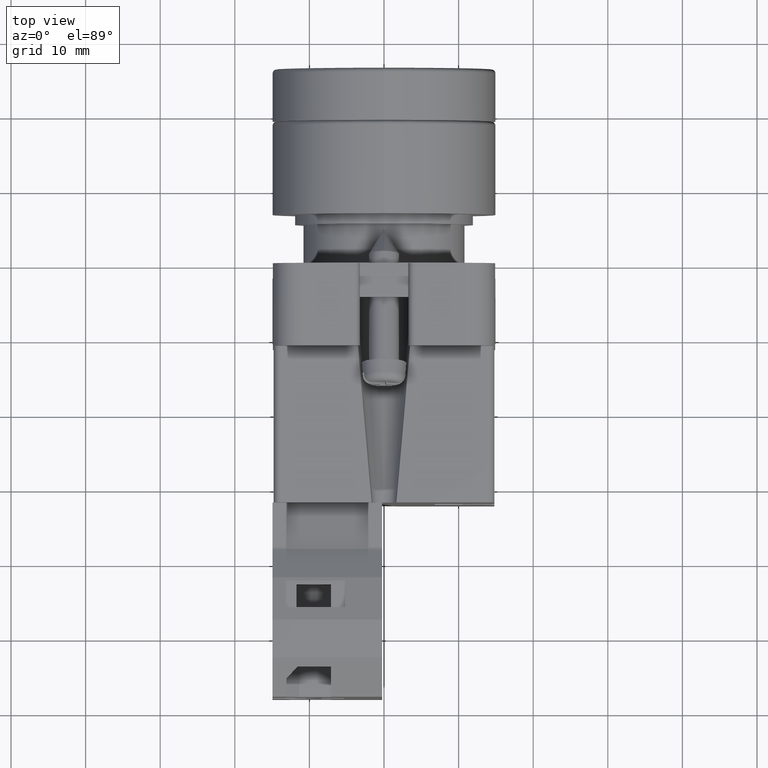
[diagram: clean part render]
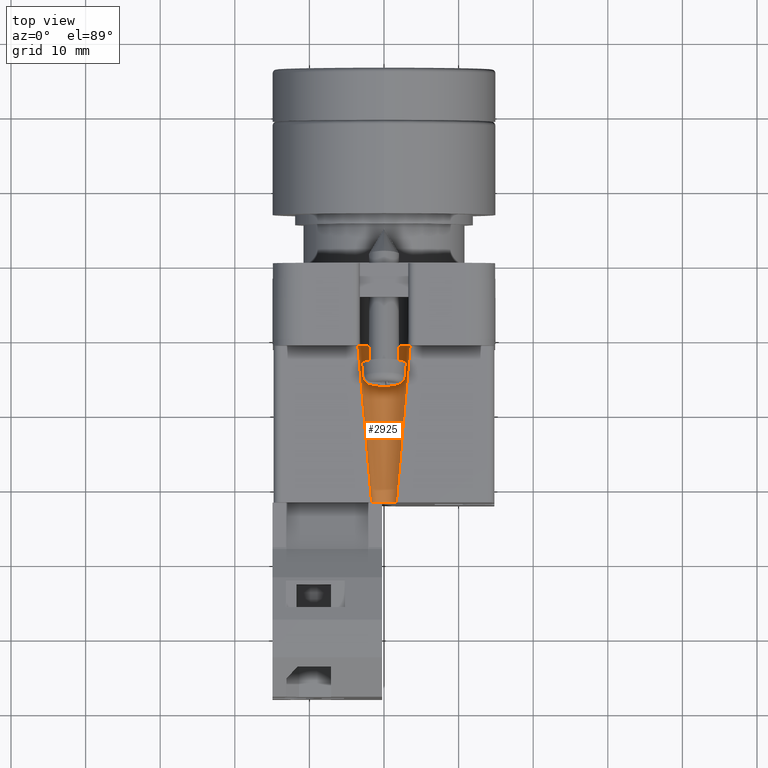
[diagram: same view with one face highlighted and labeled with its STEP entity id]
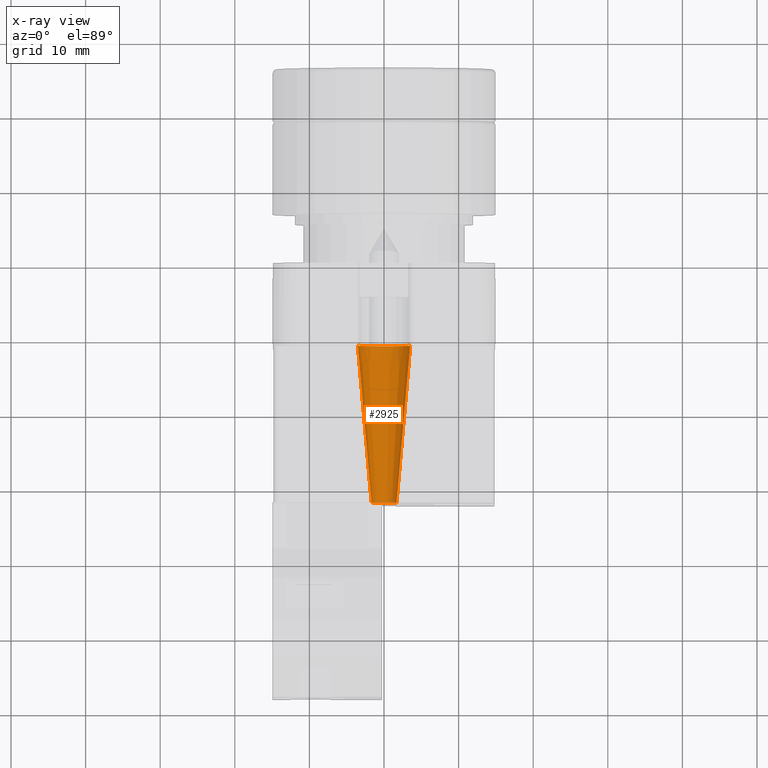
[diagram: x-ray of the same camera — body ghosted, the highlighted face saturated]
A machine part, top view. The second image highlights one B-rep face of the part: STEP entity #2925.
The next image is the same camera in x-ray: the body ghosted, the highlighted face saturated — about 0% of this face is hidden behind the body in this view.
In plain terms, the highlighted conical surface has half-angle 5 deg.
Its self-contained STEP definition (entity closure, byte-faithful):
#342 = AXIS2_PLACEMENT_3D ( 'NONE', #11403, #4688, #12540 ) ;
#434 = DIRECTION ( 'NONE',  ( 0.0000000000000000000, -0.9961946980917454300, 0.08715574274765822100 ) ) ;
#498 = CARTESIAN_POINT ( 'NONE',  ( 0.6220472440944883100, 0.4133858267716535900, 1.365923996832131600E-016 ) ) ;
#756 = CIRCLE ( 'NONE', #342, 0.1377952755905511900 ) ;
#790 = AXIS2_PLACEMENT_3D ( 'NONE', #8925, #2298, #10039 ) ;
#945 = ORIENTED_EDGE ( 'NONE', *, *, #8059, .F. ) ;
#1075 = ORIENTED_EDGE ( 'NONE', *, *, #10083, .T. ) ;
#1822 = EDGE_CURVE ( 'NONE', #8993, #5832, #3751, .T. ) ;
#2298 = DIRECTION ( 'NONE',  ( 0.0000000000000000000, 1.000000000000000000, -0.0000000000000000000 ) ) ;
#2885 = LINE ( 'NONE', #4967, #5447 ) ;
#2925 = ADVANCED_FACE ( 'NONE', ( #11819 ), #8451, .F. ) ;
#3198 = VERTEX_POINT ( 'NONE', #7583 ) ;
#3732 = EDGE_CURVE ( 'NONE', #5832, #8167, #2885, .T. ) ;
#3751 = CIRCLE ( 'NONE', #790, 0.06546212858092895200 ) ;
#4688 = DIRECTION ( 'NONE',  ( 0.0000000000000000000, 1.000000000000000000, -0.0000000000000000000 ) ) ;
#4909 = CARTESIAN_POINT ( 'NONE',  ( 0.6220472440944883100, -0.4133858267716535900, 0.06546212858092909100 ) ) ;
#4967 = CARTESIAN_POINT ( 'NONE',  ( 0.6220472440944883100, -1.161621380301759400, 1.365923996832131600E-016 ) ) ;
#5014 = LINE ( 'NONE', #5895, #5353 ) ;
#5353 = VECTOR ( 'NONE', #434, 39.37007874015748100 ) ;
#5447 = VECTOR ( 'NONE', #10547, 39.37007874015748100 ) ;
#5812 = CARTESIAN_POINT ( 'NONE',  ( 0.6220472440944883100, -0.4133858267716535900, -0.06546212858092881300 ) ) ;
#5832 = VERTEX_POINT ( 'NONE', #4909 ) ;
#5895 = CARTESIAN_POINT ( 'NONE',  ( 0.6220472440944883100, -1.161621380301759400, 1.365923996832131600E-016 ) ) ;
#6086 = CARTESIAN_POINT ( 'NONE',  ( 0.6220472440944883100, 0.4133858267716535900, 0.1377952755905513200 ) ) ;
#7065 = EDGE_LOOP ( 'NONE', ( #13167, #945, #1075, #10429 ) ) ;
#7583 = CARTESIAN_POINT ( 'NONE',  ( 0.6220472440944883100, 0.4133858267716535900, -0.1377952755905510500 ) ) ;
#8059 = EDGE_CURVE ( 'NONE', #3198, #8993, #5014, .T. ) ;
#8143 = DIRECTION ( 'NONE',  ( 0.0000000000000000000, 0.0000000000000000000, -1.000000000000000000 ) ) ;
#8167 = VERTEX_POINT ( 'NONE', #6086 ) ;
#8451 = CONICAL_SURFACE ( 'NONE', #10014, 0.1377952755905511900, 0.08726646259971651600 ) ;
#8925 = CARTESIAN_POINT ( 'NONE',  ( 0.6220472440944883100, -0.4133858267716535900, 1.365923996832131600E-016 ) ) ;
#8993 = VERTEX_POINT ( 'NONE', #5812 ) ;
#10014 = AXIS2_PLACEMENT_3D ( 'NONE', #498, #12658, #8143 ) ;
#10039 = DIRECTION ( 'NONE',  ( 0.0000000000000000000, 0.0000000000000000000, -1.000000000000000000 ) ) ;
#10083 = EDGE_CURVE ( 'NONE', #3198, #8167, #756, .T. ) ;
#10429 = ORIENTED_EDGE ( 'NONE', *, *, #3732, .F. ) ;
#10547 = DIRECTION ( 'NONE',  ( 0.0000000000000000000, 0.9961946980917454300, 0.08715574274765822100 ) ) ;
#11403 = CARTESIAN_POINT ( 'NONE',  ( 0.6220472440944883100, 0.4133858267716535900, 1.365923996832131600E-016 ) ) ;
#11819 = FACE_OUTER_BOUND ( 'NONE', #7065, .T. ) ;
#12540 = DIRECTION ( 'NONE',  ( 0.0000000000000000000, 0.0000000000000000000, -1.000000000000000000 ) ) ;
#12658 = DIRECTION ( 'NONE',  ( -0.0000000000000000000, 1.000000000000000000, -0.0000000000000000000 ) ) ;
#13167 = ORIENTED_EDGE ( 'NONE', *, *, #1822, .F. ) ;